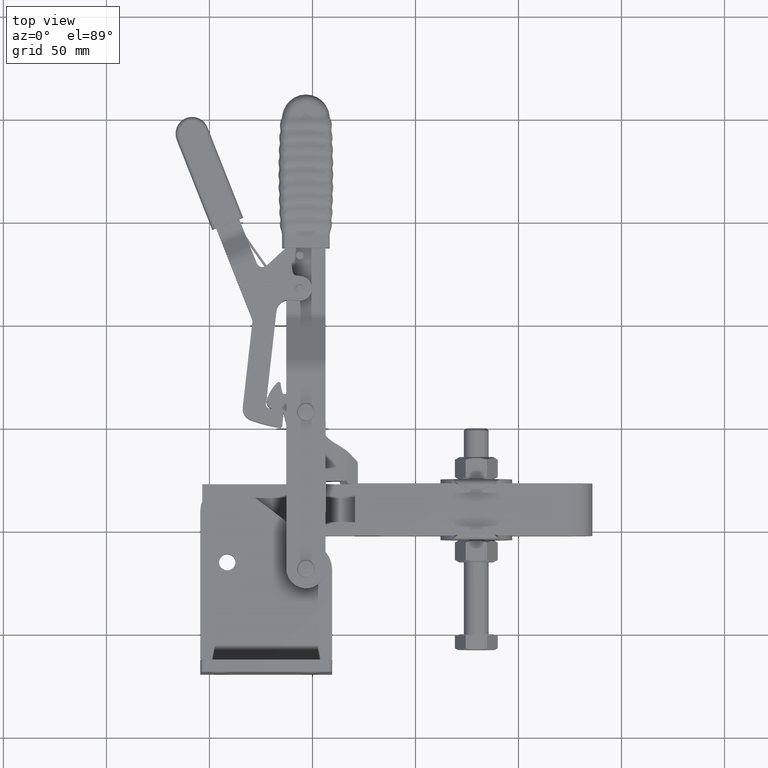
[diagram: clean part render]
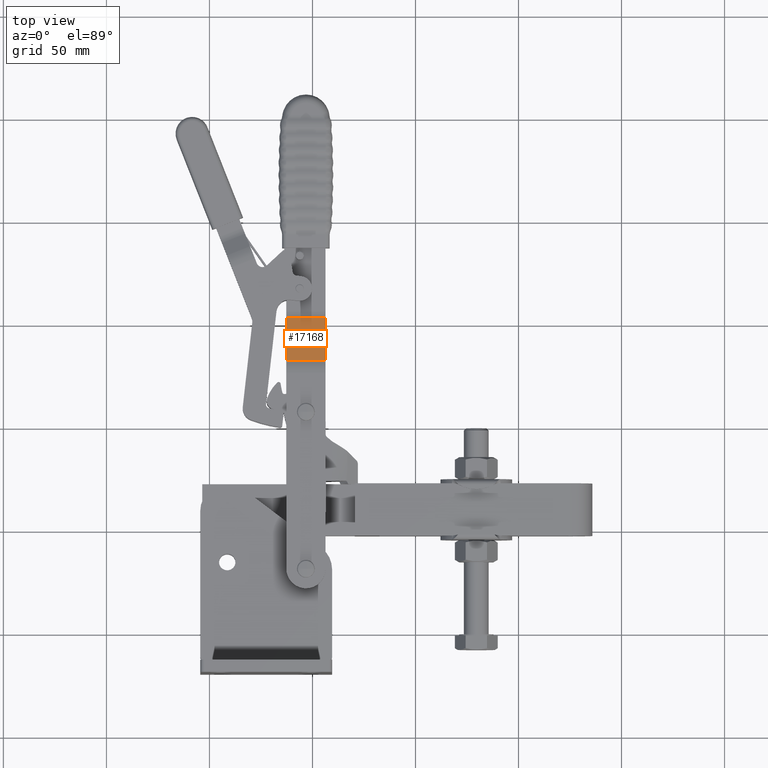
[diagram: same view with one face highlighted and labeled with its STEP entity id]
A machine part, top view. The second image highlights one B-rep face of the part: STEP entity #17168.
In plain terms, the highlighted face is a freeform B-spline surface patch.
Its self-contained STEP definition (entity closure, byte-faithful):
#16148=CARTESIAN_POINT('',(106.336439388011600,303.202626826769460,21.951641571883663));
#16149=VERTEX_POINT('',#16148);
#16157=CARTESIAN_POINT('',(106.336439388011570,282.469888210745300,33.271716856232885));
#16158=VERTEX_POINT('',#16157);
#16159=CARTESIAN_POINT('',(106.336439388011600,303.202626826769460,21.951641571883663));
#16160=DIRECTION('',(-1.203197E-015,-0.877694240648252,0.479221055393947));
#16161=VECTOR('',#16160,23.621823701054790);
#16162=LINE('',#16159,#16161);
#16163=EDGE_CURVE('',#16149,#16158,#16162,.T.);
#17024=CARTESIAN_POINT('',(87.286439388011615,303.202626826769460,21.951641571883656));
#17025=VERTEX_POINT('',#17024);
#17033=CARTESIAN_POINT('',(87.286439388011615,303.202626826769460,21.951641571883656));
#17034=DIRECTION('',(1.0,0.0,0.0));
#17035=VECTOR('',#17034,19.049999999999983);
#17036=LINE('',#17033,#17035);
#17037=EDGE_CURVE('',#17025,#16149,#17036,.T.);
#17115=CARTESIAN_POINT('',(87.286439388011573,282.469888210745300,33.271716856232871));
#17116=VERTEX_POINT('',#17115);
#17117=CARTESIAN_POINT('',(106.336439388011570,282.469888210745300,33.271716856232885));
#17118=DIRECTION('',(-1.0,0.0,0.0));
#17119=VECTOR('',#17118,19.049999999999997);
#17120=LINE('',#17117,#17119);
#17121=EDGE_CURVE('',#16158,#17116,#17120,.T.);
#17152=CARTESIAN_POINT('',(87.286439388011530,282.469888210745240,33.271716856232899));
#17153=CARTESIAN_POINT('',(106.336439388011630,282.469888210745180,33.271716856232914));
#17154=CARTESIAN_POINT('',(87.286439388011573,303.202626826769460,21.951641571883659));
#17155=CARTESIAN_POINT('',(106.336439388011660,303.202626826769350,21.951641571883670));
#17156=B_SPLINE_SURFACE_WITH_KNOTS('',1,1,((#17152,#17154),(#17153,#17155)),.UNSPECIFIED.,.F.,.F.,.U.,(2,2),(2,2),(0.0,19.050000000000097),(0.0,23.621823701054847),.UNSPECIFIED.);
#17157=ORIENTED_EDGE('',*,*,#17037,.F.);
#17158=CARTESIAN_POINT('',(87.286439388011615,303.202626826769460,21.951641571883656));
#17159=DIRECTION('',(-1.804796E-015,-0.877694240648252,0.479221055393947));
#17160=VECTOR('',#17159,23.621823701054783);
#17161=LINE('',#17158,#17160);
#17162=EDGE_CURVE('',#17025,#17116,#17161,.T.);
#17163=ORIENTED_EDGE('',*,*,#17162,.T.);
#17164=ORIENTED_EDGE('',*,*,#17121,.F.);
#17165=ORIENTED_EDGE('',*,*,#16163,.F.);
#17166=EDGE_LOOP('',(#17157,#17163,#17164,#17165));
#17167=FACE_OUTER_BOUND('',#17166,.T.);
#17168=ADVANCED_FACE('',(#17167),#17156,.T.);